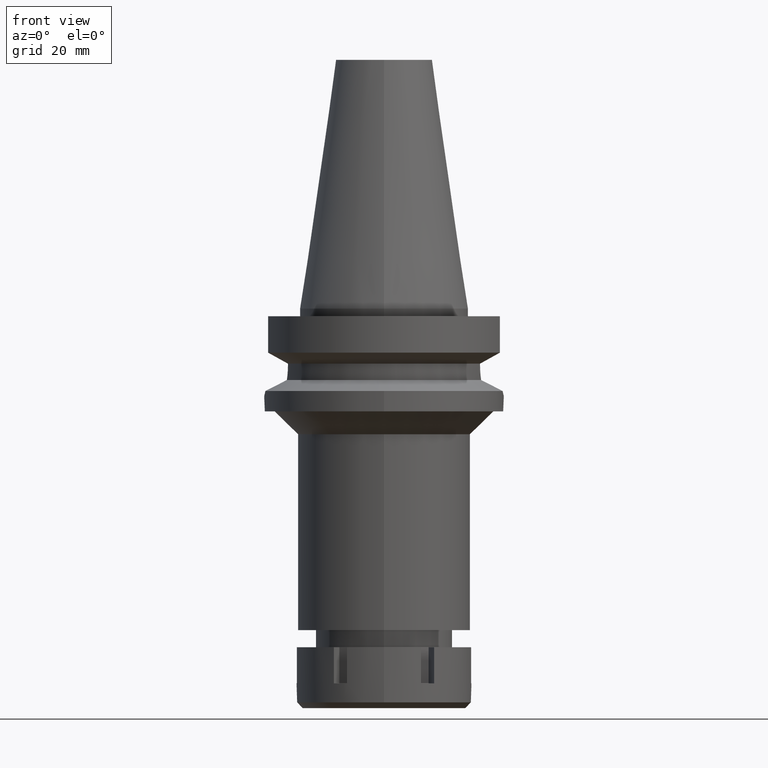
[diagram: clean part render]
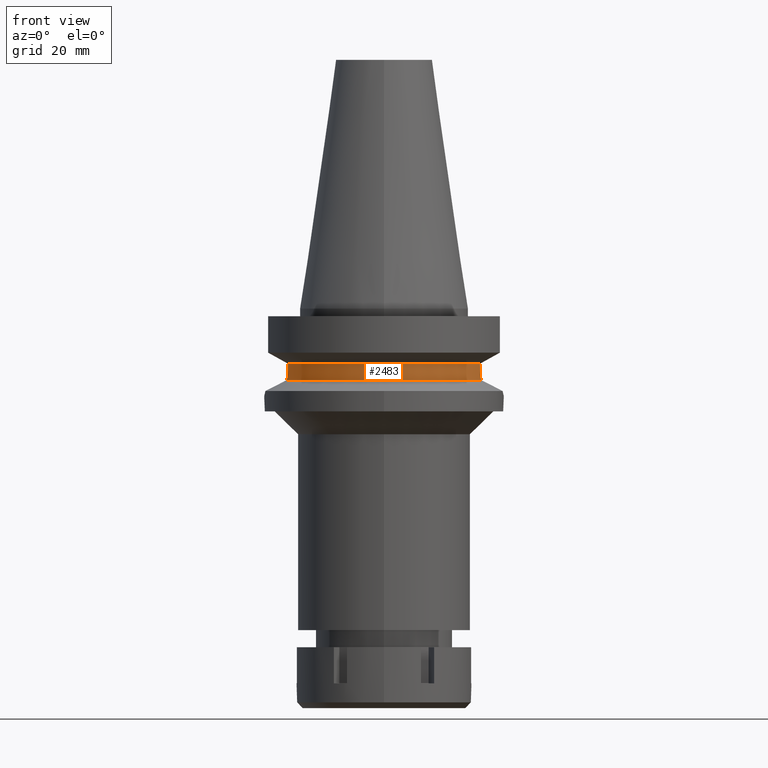
[diagram: same view with one face highlighted and labeled with its STEP entity id]
A machine part, front view. The second image highlights one B-rep face of the part: STEP entity #2483.
In plain terms, the highlighted cylindrical surface (partial cylindrical patch) has radius 26.5 mm, axis along (0, 0, -1).
Its self-contained STEP definition (entity closure, byte-faithful):
#36 = CARTESIAN_POINT ( 'NONE',  ( -25.33293017119236268, -7.777974374871634566, -17.02562462713753177 ) ) ;
#80 = LINE ( 'NONE', #3457, #2277 ) ;
#99 = CARTESIAN_POINT ( 'NONE',  ( -25.24772266958000344, -8.050000000000000711, -14.94999999999999929 ) ) ;
#244 = CARTESIAN_POINT ( 'NONE',  ( 0.0000000000000000000, 2.125007125879999817E-14, 73.51999999999999602 ) ) ;
#275 = DIRECTION ( 'NONE',  ( 0.0000000000000000000, 0.0000000000000000000, 1.000000000000000000 ) ) ;
#299 = CYLINDRICAL_SURFACE ( 'NONE', #2637, 26.50000000000000000 ) ;
#309 = B_SPLINE_CURVE_WITH_KNOTS ( 'NONE', 3,
 ( #380, #2361, #944, #1501, #966, #703, #2937, #36, #1186, #2052, #3193, #3481, #1513, #2616 ),
 .UNSPECIFIED., .F., .F.,
 ( 4, 2, 2, 1, 1, 2, 2, 4 ),
 ( 0.0000000000000000000, 0.2500000000000041078, 0.3750000000000073830, 0.4375000000000078826, 0.4687500000000093259, 0.4843750000000099365, 0.5000000000000105471, 1.000000000000000000 ),
 .UNSPECIFIED. ) ;
#380 = CARTESIAN_POINT ( 'NONE',  ( -25.53175183775000079, -7.097862220092999941, -18.74774300138999905 ) ) ;
#500 = ORIENTED_EDGE ( 'NONE', *, *, #2911, .F. ) ;
#518 = CARTESIAN_POINT ( 'NONE',  ( 25.29452398121202350, -7.902090651792934572, -16.48828405102940664 ) ) ;
#535 = CARTESIAN_POINT ( 'NONE',  ( 0.0000000000000000000, 1.065333950388000029E-14, -14.45225699861000024 ) ) ;
#558 = CARTESIAN_POINT ( 'NONE',  ( 25.53175183775000079, -7.097862220092999941, -18.74774300138999905 ) ) ;
#636 = CARTESIAN_POINT ( 'NONE',  ( 25.24772266958000344, -8.050000000000000711, -14.45225699861000024 ) ) ;
#657 = VERTEX_POINT ( 'NONE', #3553 ) ;
#703 = CARTESIAN_POINT ( 'NONE',  ( -25.35412323723021544, -7.708830947932238331, -17.27007949472962878 ) ) ;
#717 = DIRECTION ( 'NONE',  ( 1.015331671897014297E-06, 3.184450582670045682E-06, -0.9999999999944141349 ) ) ;
#813 = CARTESIAN_POINT ( 'NONE',  ( 25.31950905643225980, -7.821515286679934675, -16.85442525727312812 ) ) ;
#828 = CARTESIAN_POINT ( 'NONE',  ( 25.25396284446427231, -8.030907492774097989, -15.59360398733918451 ) ) ;
#941 = LINE ( 'NONE', #1512, #2647 ) ;
#944 = CARTESIAN_POINT ( 'NONE',  ( -25.44392837589916567, -7.408239565059886900, -18.11709494172728796 ) ) ;
#966 = CARTESIAN_POINT ( 'NONE',  ( -25.37573308857942322, -7.637710303739487117, -17.49818662950802306 ) ) ;
#973 = VERTEX_POINT ( 'NONE', #636 ) ;
#1055 = DIRECTION ( 'NONE',  ( 0.0000000000000000000, -1.000000000000000000, 0.0000000000000000000 ) ) ;
#1081 = CARTESIAN_POINT ( 'NONE',  ( 25.27268336911707891, -7.971811480182260823, -16.08115959834935182 ) ) ;
#1096 = CARTESIAN_POINT ( 'NONE',  ( 25.36814761471071833, -7.663830712965396863, -17.48803584493440155 ) ) ;
#1119 = CIRCLE ( 'NONE', #3118, 26.50000000000000000 ) ;
#1130 = VERTEX_POINT ( 'NONE', #1658 ) ;
#1186 = CARTESIAN_POINT ( 'NONE',  ( -25.32844777903620681, -7.792527725354012169, -16.96974754110893002 ) ) ;
#1392 = FACE_OUTER_BOUND ( 'NONE', #1754, .T. ) ;
#1419 = VERTEX_POINT ( 'NONE', #1702 ) ;
#1501 = CARTESIAN_POINT ( 'NONE',  ( -25.39164951572487183, -7.584807667336966652, -17.65197957159458753 ) ) ;
#1512 = CARTESIAN_POINT ( 'NONE',  ( -25.24772266958000344, -8.050000000000000711, -14.94999999999999929 ) ) ;
#1513 = CARTESIAN_POINT ( 'NONE',  ( -25.24772266957999989, -8.049999999999981171, -15.58999736273363546 ) ) ;
#1562 = EDGE_CURVE ( 'NONE', #973, #657, #80, .T. ) ;
#1605 = EDGE_CURVE ( 'NONE', #973, #1419, #1759, .T. ) ;
#1616 = CARTESIAN_POINT ( 'NONE',  ( 25.53175183775000079, -7.097862220092999941, -18.74774300138999905 ) ) ;
#1627 = CARTESIAN_POINT ( 'NONE',  ( 25.30212919435223284, -7.877667573970344783, -16.61042047323939741 ) ) ;
#1658 = CARTESIAN_POINT ( 'NONE',  ( -25.53175183775000079, -7.097862220092999941, -18.74774300138999905 ) ) ;
#1693 = CARTESIAN_POINT ( 'NONE',  ( 25.24772266958000699, -8.050000000000000711, -15.26991324108734283 ) ) ;
#1702 = CARTESIAN_POINT ( 'NONE',  ( -25.24772413167000096, -8.049995414356999390, -14.45229203890999869 ) ) ;
#1739 = ORIENTED_EDGE ( 'NONE', *, *, #2101, .T. ) ;
#1743 = ORIENTED_EDGE ( 'NONE', *, *, #1605, .T. ) ;
#1754 = EDGE_LOOP ( 'NONE', ( #500, #1739, #3572, #3468, #1743, #2159 ) ) ;
#1759 = CIRCLE ( 'NONE', #2153, 26.50000000000000711 ) ;
#1908 = CARTESIAN_POINT ( 'NONE',  ( 25.43786330456364553, -7.435589081429987424, -18.11654211998960662 ) ) ;
#1943 = CARTESIAN_POINT ( 'NONE',  ( 0.0000000000000000000, 0.0000000000000000000, -18.74774300138999905 ) ) ;
#1947 = DIRECTION ( 'NONE',  ( 0.0000000000000000000, 0.0000000000000000000, -1.000000000000000000 ) ) ;
#2052 = CARTESIAN_POINT ( 'NONE',  ( -25.32550670071061916, -7.802071535306239092, -16.93256103013014169 ) ) ;
#2101 = EDGE_CURVE ( 'NONE', #1130, #2968, #1119, .T. ) ;
#2153 = AXIS2_PLACEMENT_3D ( 'NONE', #535, #1947, #3117 ) ;
#2159 = ORIENTED_EDGE ( 'NONE', *, *, #3394, .F. ) ;
#2180 = CARTESIAN_POINT ( 'NONE',  ( 25.31202572170775866, -7.845729406580135290, -16.75279821057739582 ) ) ;
#2212 = CARTESIAN_POINT ( 'NONE',  ( 25.31648647172268340, -7.831300037042765894, -16.81378020971403231 ) ) ;
#2277 = VECTOR ( 'NONE', #717, 1000.000000000000114 ) ;
#2361 = CARTESIAN_POINT ( 'NONE',  ( -25.48482038766596958, -7.266679548433801372, -18.43222872448819771 ) ) ;
#2483 = ADVANCED_FACE ( 'NONE', ( #1392 ), #299, .T. ) ;
#2500 = EDGE_CURVE ( 'NONE', #657, #2968, #3163, .T. ) ;
#2579 = DIRECTION ( 'NONE',  ( -2.937643225232118829E-06, 9.213521508888366940E-06, 0.9999999999532406258 ) ) ;
#2616 = CARTESIAN_POINT ( 'NONE',  ( -25.24772266958000344, -8.050000000000000711, -14.94999999999999929 ) ) ;
#2637 = AXIS2_PLACEMENT_3D ( 'NONE', #244, #2754, #1055 ) ;
#2647 = VECTOR ( 'NONE', #2579, 1000.000000000000000 ) ;
#2733 = DIRECTION ( 'NONE',  ( 0.0000000000000000000, -1.000000000000000000, 0.0000000000000000000 ) ) ;
#2754 = DIRECTION ( 'NONE',  ( 0.0000000000000000000, 0.0000000000000000000, -1.000000000000000000 ) ) ;
#2911 = EDGE_CURVE ( 'NONE', #1130, #2930, #309, .T. ) ;
#2930 = VERTEX_POINT ( 'NONE', #99 ) ;
#2937 = CARTESIAN_POINT ( 'NONE',  ( -25.34388450889784750, -7.742333382928174856, -17.15666984720027344 ) ) ;
#2968 = VERTEX_POINT ( 'NONE', #1616 ) ;
#3037 = CARTESIAN_POINT ( 'NONE',  ( 25.24772266958000344, -8.050000000000000711, -14.94999999999999929 ) ) ;
#3117 = DIRECTION ( 'NONE',  ( 0.9527442516822307583, -0.3037735849057093818, 0.0000000000000000000 ) ) ;
#3118 = AXIS2_PLACEMENT_3D ( 'NONE', #1943, #275, #2733 ) ;
#3163 = B_SPLINE_CURVE_WITH_KNOTS ( 'NONE', 3,
 ( #3037, #1693, #828, #1081, #3303, #518, #1627, #2180, #2212, #813, #3627, #1096, #1908, #558 ),
 .UNSPECIFIED., .F., .F.,
 ( 4, 2, 2, 1, 1, 2, 2, 4 ),
 ( 0.0000000000000000000, 0.2499999999999888978, 0.3749999999999832911, 0.4374999999999816813, 0.4687499999999808487, 0.4843749999999804046, 0.4999999999999800160, 1.000000000000000000 ),
 .UNSPECIFIED. ) ;
#3193 = CARTESIAN_POINT ( 'NONE',  ( -25.32419709970849553, -7.806318959900105270, -16.91578803901766292 ) ) ;
#3303 = CARTESIAN_POINT ( 'NONE',  ( 25.28048358772242565, -7.947040743794929085, -16.24400980664070460 ) ) ;
#3394 = EDGE_CURVE ( 'NONE', #2930, #1419, #941, .T. ) ;
#3457 = CARTESIAN_POINT ( 'NONE',  ( 25.24772216419000159, -8.050001585077000144, -14.45224488722999823 ) ) ;
#3468 = ORIENTED_EDGE ( 'NONE', *, *, #1562, .F. ) ;
#3481 = CARTESIAN_POINT ( 'NONE',  ( -25.27269391207093463, -7.973288729731969227, -16.24537813257547469 ) ) ;
#3553 = CARTESIAN_POINT ( 'NONE',  ( 25.24772266958000344, -8.050000000000000711, -14.94999999999999929 ) ) ;
#3572 = ORIENTED_EDGE ( 'NONE', *, *, #2500, .F. ) ;
#3627 = CARTESIAN_POINT ( 'NONE',  ( 25.32118155423751560, -7.816096717212926315, -16.87652453452369627 ) ) ;